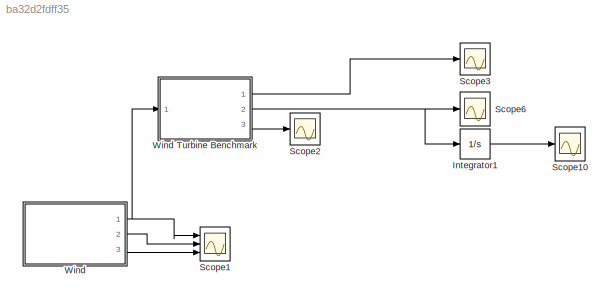
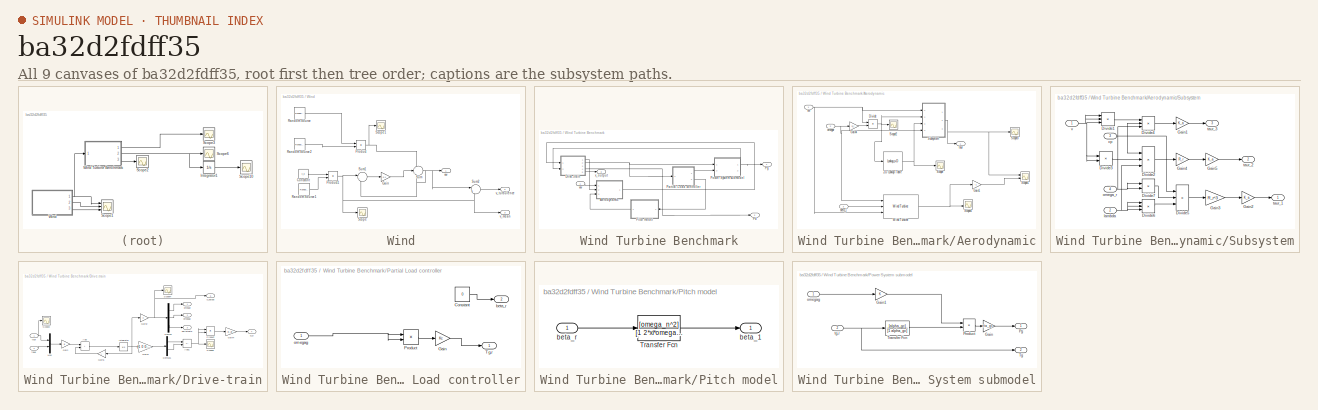
[diagram: thumbnail index - all 9 canvases of the model, root first then tree order]
MODEL mdl_ba32d2fdff35
KIND model
CONFIG AbsTol = auto
CONFIG EnableMultiTasking = off
CONFIG FixedStep = auto
CONFIG MaxStep = auto
CONFIG MinStep = auto
CONFIG RelTol = 1e-1
CONFIG SampleTimeConstraint = Unconstrained
CONFIG SolverName = VariableStepAuto
CONFIG StartTime = 0.0
CONFIG StopTime = 2000
BLOCK [Integrator] Integrator1
  Ports = [1, 1]
BLOCK [Scope] Scope1
  Floating = off
  NumInputPorts = 3
  Ports = [3]
  ScopeSpecificationString = Simulink.scopes.TimeScopeBlockCfg('CurrentConfiguration', extmgr.ConfigurationSet(extmgr.Configuration('Core','General UI',true),extmgr.Configuration('Core','Source UI',true),extmgr.Configuration('Sources','WiredSimulink',true,'DataLoggingVariableName','ScopeData1'),extmgr.Configuration('Visuals','Time Domain',true,'SerializedDisplays',{struct('MinYLimReal','3.48153','MaxYLimReal','15.52953','YLab...<+1604ch>
BLOCK [Scope] Scope10
  Floating = off
  NumInputPorts = 1
  Ports = [1]
  ScopeSpecificationString = Simulink.scopes.TimeScopeBlockCfg('CurrentConfiguration', extmgr.ConfigurationSet(extmgr.Configuration('Core','General UI',true),extmgr.Configuration('Core','Source UI',true),extmgr.Configuration('Sources','WiredSimulink',true,'DataLoggingVariableName','ScopeData1','DataLoggingSaveFormat','Array'),extmgr.Configuration('Visuals','Time Domain',true,'SerializedDisplays',{struct('MinYLimReal','-0.8618...<+1471ch>
BLOCK [Scope] Scope2
  Floating = off
  NumInputPorts = 1
  Ports = [1]
  ScopeSpecificationString = Simulink.scopes.TimeScopeBlockCfg('CurrentConfiguration', extmgr.ConfigurationSet(extmgr.Configuration('Core','General UI',true),extmgr.Configuration('Core','Source UI',true),extmgr.Configuration('Sources','WiredSimulink',true,'DataLoggingVariableName','ScopeData1','DataLoggingSaveFormat','Array'),extmgr.Configuration('Visuals','Time Domain',true,'SerializedDisplays',{struct('MinYLimReal','-0.1455...<+1573ch>
BLOCK [Scope] Scope3
  Floating = off
  NumInputPorts = 1
  Ports = [1]
  ScopeSpecificationString = Simulink.scopes.TimeScopeBlockCfg('CurrentConfiguration', extmgr.ConfigurationSet(extmgr.Configuration('Core','General UI',true),extmgr.Configuration('Core','Source UI',true),extmgr.Configuration('Sources','WiredSimulink',true,'DataLoggingVariableName','pg_real','DataLogging',true,'DataLoggingSaveFormat','Array'),extmgr.Configuration('Visuals','Time Domain',true,'SerializedDisplays',{struct('MinYL...<+1571ch>
BLOCK [Scope] Scope6
  Floating = off
  NumInputPorts = 1
  Ports = [1]
  ScopeSpecificationString = Simulink.scopes.TimeScopeBlockCfg('CurrentConfiguration', extmgr.ConfigurationSet(extmgr.Configuration('Core','General UI',true),extmgr.Configuration('Core','Source UI',true),extmgr.Configuration('Sources','WiredSimulink',true,'DataLoggingVariableName','pd_real','DataLoggingSaveFormat','Array'),extmgr.Configuration('Visuals','Time Domain',true,'SerializedDisplays',{struct('MinYLimReal','-0.00629',...<+1460ch>
BLOCK [SubSystem] Wind
  Ports = [0, 3]
  RequestExecContextInheritance = off
BLOCK [SubSystem] Wind Turbine Benchmark
  Ports = [1, 3]
  RequestExecContextInheritance = off
BLOCK [SubSystem] Wind Turbine Benchmark/Aerodynamic
  Ports = [3, 1]
  RequestExecContextInheritance = off
BLOCK [Lookup_n-D] Wind Turbine Benchmark/Aerodynamic/2-D Lookup Table
  BreakpointsForDimension1 = [0.411941585147336;0.599187760214307;0.878808714980984;1.09851089372623;1.31821307247148;1.64776634058934;1.88316153210211;2.19702178745246;2.35395191512763;2.63642614494295;2.82474229815316;3.07583050243344;3.29553268117869;3.59512656128584;3.8447881280418;4.11941585147336;4.39404357490492;4.5630452508628;4.83344793239541;5.07005027873644;5.2728522898859;5.57705530661009;5.7671821920627;6.0840603...<+211ch>
  BreakpointsForDimension1DataTypeStr = Inherit: Inherit from 'Breakpoint data'
  BreakpointsForDimension2 = [0;1]
  InputPortMap = u0
  InternalRulePriority = Speed
  NumberOfTableDimensions = 1
  Ports = [1, 1]
  RndMeth = Simplest
  Table = cp_list
  TableDataTypeStr = Inherit: Inherit from 'Table data'
BLOCK [Product] Wind Turbine Benchmark/Aerodynamic/Divide
  Inputs = /*
  Ports = [2, 1]
BLOCK [Gain] Wind Turbine Benchmark/Aerodynamic/Gain1
  Gain = -1
BLOCK [Gain] Wind Turbine Benchmark/Aerodynamic/Gain4
  Gain = R_r
BLOCK [Scope] Wind Turbine Benchmark/Aerodynamic/Scope
  Floating = off
  NumInputPorts = 1
  Ports = [1]
  ScopeSpecificationString = Simulink.scopes.TimeScopeBlockCfg('CurrentConfiguration', extmgr.ConfigurationSet(extmgr.Configuration('Core','General UI',true),extmgr.Configuration('Core','Source UI',true),extmgr.Configuration('Sources','WiredSimulink',true,'DataLoggingVariableName','ScopeData2'),extmgr.Configuration('Visuals','Time Domain',true,'SerializedDisplays',{struct('MinYLimReal','0.43937','MaxYLimReal','0.49151','YLabe...<+1444ch>
BLOCK [Scope] Wind Turbine Benchmark/Aerodynamic/Scope1
  Floating = off
  NumInputPorts = 2
  Ports = [2]
  ScopeSpecificationString = Simulink.scopes.TimeScopeBlockCfg('CurrentConfiguration', extmgr.ConfigurationSet(extmgr.Configuration('Core','General UI',true),extmgr.Configuration('Core','Source UI',true),extmgr.Configuration('Sources','WiredSimulink',true,'DataLoggingVariableName','ScopeData1'),extmgr.Configuration('Visuals','Time Domain',true,'SerializedDisplays',{struct('MinYLimReal','-208576.24788','MaxYLimReal','2059285.6...<+1520ch>
BLOCK [Scope] Wind Turbine Benchmark/Aerodynamic/Scope2
  Floating = off
  NumInputPorts = 1
  Ports = [1]
  ScopeSpecificationString = Simulink.scopes.TimeScopeBlockCfg('CurrentConfiguration', extmgr.ConfigurationSet(extmgr.Configuration('Core','General UI',true),extmgr.Configuration('Core','Source UI',true),extmgr.Configuration('Sources','WiredSimulink',true,'DataLoggingVariableName','ScopeData6'),extmgr.Configuration('Visuals','Time Domain',true,'SerializedDisplays',{struct('MinYLimReal','7.0582','MaxYLimReal','9.08619','YLabel...<+1457ch>
BLOCK [Scope] Wind Turbine Benchmark/Aerodynamic/Scope3
  Floating = off
  NumInputPorts = 1
  Ports = [1]
  ScopeSpecificationString = Simulink.scopes.TimeScopeBlockCfg('CurrentConfiguration', extmgr.ConfigurationSet(extmgr.Configuration('Core','General UI',true),extmgr.Configuration('Core','Source UI',true),extmgr.Configuration('Sources','WiredSimulink',true,'DataLoggingVariableName','ScopeData5'),extmgr.Configuration('Visuals','Time Domain',true,'SerializedDisplays',{struct('MinYLimReal','-2176606951.99699','MaxYLimReal','24343...<+1536ch>
BLOCK [Scope] Wind Turbine Benchmark/Aerodynamic/Scope4
  Floating = off
  NumInputPorts = 2
  Ports = [2]
  ScopeSpecificationString = Simulink.scopes.TimeScopeBlockCfg('CurrentConfiguration', extmgr.ConfigurationSet(extmgr.Configuration('Core','General UI',true),extmgr.Configuration('Core','Source UI',true),extmgr.Configuration('Sources','WiredSimulink',true,'DataLoggingVariableName','ScopeData2'),extmgr.Configuration('Visuals','Time Domain',true,'SerializedDisplays',{struct('MinYLimReal','-15.23022','MaxYLimReal','1.69225','YLa...<+1485ch>
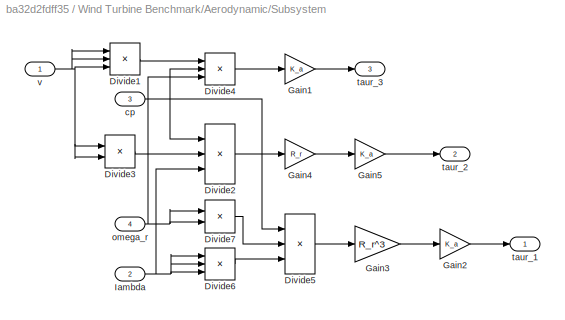
BLOCK [SubSystem] Wind Turbine Benchmark/Aerodynamic/Subsystem
  Ports = [4, 3]
  RequestExecContextInheritance = off
BLOCK [Product] Wind Turbine Benchmark/Aerodynamic/Subsystem/Divide1
  Inputs = ***
  Ports = [3, 1]
BLOCK [Product] Wind Turbine Benchmark/Aerodynamic/Subsystem/Divide2
  Inputs = **/
  Ports = [3, 1]
BLOCK [Product] Wind Turbine Benchmark/Aerodynamic/Subsystem/Divide3
  Inputs = **
  Ports = [2, 1]
BLOCK [Product] Wind Turbine Benchmark/Aerodynamic/Subsystem/Divide4
  Inputs = **/
  Ports = [3, 1]
BLOCK [Product] Wind Turbine Benchmark/Aerodynamic/Subsystem/Divide5
  Inputs = **/
  Ports = [3, 1]
BLOCK [Product] Wind Turbine Benchmark/Aerodynamic/Subsystem/Divide6
  Inputs = ***
  Ports = [3, 1]
BLOCK [Product] Wind Turbine Benchmark/Aerodynamic/Subsystem/Divide7
  Inputs = **
  Ports = [2, 1]
BLOCK [Gain] Wind Turbine Benchmark/Aerodynamic/Subsystem/Gain1
  Gain = K_a
BLOCK [Gain] Wind Turbine Benchmark/Aerodynamic/Subsystem/Gain2
  Gain = K_a
BLOCK [Gain] Wind Turbine Benchmark/Aerodynamic/Subsystem/Gain3
  Gain = R_r^3
BLOCK [Gain] Wind Turbine Benchmark/Aerodynamic/Subsystem/Gain4
  Gain = R_r
BLOCK [Gain] Wind Turbine Benchmark/Aerodynamic/Subsystem/Gain5
  Gain = K_a
BLOCK [Inport] Wind Turbine Benchmark/Aerodynamic/Subsystem/Iambda
  NameLocation = left
  Port = 2
BLOCK [Inport] Wind Turbine Benchmark/Aerodynamic/Subsystem/cp
  Port = 3
BLOCK [Inport] Wind Turbine Benchmark/Aerodynamic/Subsystem/omega_r
  Port = 4
BLOCK [Outport] Wind Turbine Benchmark/Aerodynamic/Subsystem/taur_1
BLOCK [Outport] Wind Turbine Benchmark/Aerodynamic/Subsystem/taur_2
  Port = 2
BLOCK [Outport] Wind Turbine Benchmark/Aerodynamic/Subsystem/taur_3
  Port = 3
BLOCK [Inport] Wind Turbine Benchmark/Aerodynamic/Subsystem/v
BLOCK [Reference] Wind Turbine Benchmark/Aerodynamic/Wind Turbine  REF=spsWindTurbineLib/Wind Turbine
  Ports = [3, 1]
  SourceBlock = spsWindTurbineLib/Wind Turbine
  SourceProductBaseCode = PS
  SourceType = Wind Turbine
BLOCK [Inport] Wind Turbine Benchmark/Aerodynamic/beta_1
  Port = 3
BLOCK [Inport] Wind Turbine Benchmark/Aerodynamic/omegar
  Port = 2
BLOCK [Outport] Wind Turbine Benchmark/Aerodynamic/taur
BLOCK [Inport] Wind Turbine Benchmark/Aerodynamic/vw
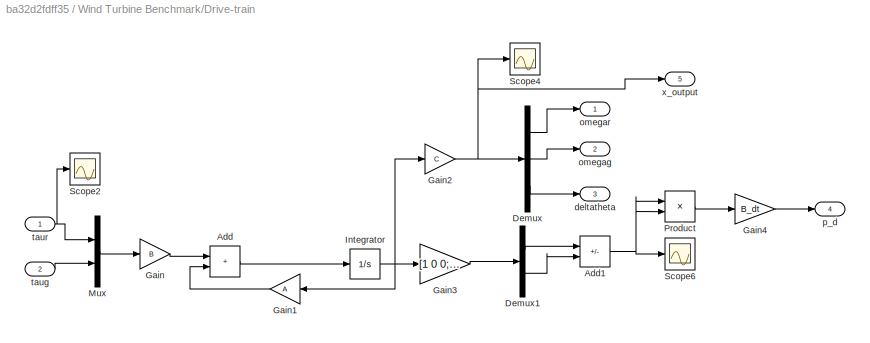
BLOCK [SubSystem] Wind Turbine Benchmark/Drive-train
  Ports = [2, 5]
  RequestExecContextInheritance = off
BLOCK [Sum] Wind Turbine Benchmark/Drive-train/Add
  IconShape = rectangular
  Ports = [2, 1]
BLOCK [Sum] Wind Turbine Benchmark/Drive-train/Add1
  IconShape = rectangular
  Inputs = +-
  Ports = [2, 1]
BLOCK [Demux] Wind Turbine Benchmark/Drive-train/Demux
  Outputs = 3
  Ports = [1, 3]
BLOCK [Demux] Wind Turbine Benchmark/Drive-train/Demux1
  Outputs = 2
  Ports = [1, 2]
BLOCK [Gain] Wind Turbine Benchmark/Drive-train/Gain
  Gain = B
  Multiplication = Matrix(K*u)
BLOCK [Gain] Wind Turbine Benchmark/Drive-train/Gain1
  Gain = A
  Multiplication = Matrix(K*u)
BLOCK [Gain] Wind Turbine Benchmark/Drive-train/Gain2
  Gain = C
  Multiplication = Matrix(K*u)
BLOCK [Gain] Wind Turbine Benchmark/Drive-train/Gain3
  Gain = [1 0 0; 0 1 0]
  Multiplication = Matrix(K*u)
BLOCK [Gain] Wind Turbine Benchmark/Drive-train/Gain4
  Gain = B_dt
BLOCK [Integrator] Wind Turbine Benchmark/Drive-train/Integrator
  InitialCondition = x0
  Ports = [1, 1]
BLOCK [Mux] Wind Turbine Benchmark/Drive-train/Mux
  DisplayOption = bar
  Inputs = 2
  Ports = [2, 1]
BLOCK [Product] Wind Turbine Benchmark/Drive-train/Product
  Ports = [2, 1]
BLOCK [Scope] Wind Turbine Benchmark/Drive-train/Scope2
  Floating = off
  NumInputPorts = 1
  Ports = [1]
  ScopeSpecificationString = Simulink.scopes.TimeScopeBlockCfg('CurrentConfiguration', extmgr.ConfigurationSet(extmgr.Configuration('Core','General UI',true),extmgr.Configuration('Core','Source UI',true),extmgr.Configuration('Sources','WiredSimulink',true,'DataLoggingVariableName','ScopeData1'),extmgr.Configuration('Visuals','Time Domain',true,'SerializedDisplays',{struct('MinYLimReal','-200847.07707','MaxYLimReal','1916141.3...<+1502ch>
BLOCK [Scope] Wind Turbine Benchmark/Drive-train/Scope4
  Floating = off
  NumInputPorts = 1
  Ports = [1]
  ScopeSpecificationString = Simulink.scopes.TimeScopeBlockCfg('CurrentConfiguration', extmgr.ConfigurationSet(extmgr.Configuration('Core','General UI',true),extmgr.Configuration('Core','Source UI',true),extmgr.Configuration('Sources','WiredSimulink',true,'DataLoggingVariableName','ScopeData5'),extmgr.Configuration('Visuals','Time Domain',true,'SerializedDisplays',{struct('MinYLimReal','-4.70663','MaxYLimReal','5.61272','YLab...<+1484ch>
BLOCK [Scope] Wind Turbine Benchmark/Drive-train/Scope6
  Floating = off
  NumInputPorts = 1
  Ports = [1]
  ScopeSpecificationString = Simulink.scopes.TimeScopeBlockCfg('CurrentConfiguration', extmgr.ConfigurationSet(extmgr.Configuration('Core','General UI',true),extmgr.Configuration('Core','Source UI',true),extmgr.Configuration('Sources','WiredSimulink',true,'DataLogging',true,'DataLoggingVariableName','ScopeData4','DataLoggingSaveFormat','Array'),extmgr.Configuration('Visuals','Time Domain',true,'SerializedDisplays',{struct('Mi...<+1486ch>
BLOCK [Outport] Wind Turbine Benchmark/Drive-train/deltatheta
  Port = 3
BLOCK [Outport] Wind Turbine Benchmark/Drive-train/omegag
  Port = 2
BLOCK [Outport] Wind Turbine Benchmark/Drive-train/omegar
BLOCK [Outport] Wind Turbine Benchmark/Drive-train/p_d
  Port = 4
BLOCK [Inport] Wind Turbine Benchmark/Drive-train/taug
  Port = 2
BLOCK [Inport] Wind Turbine Benchmark/Drive-train/taur
BLOCK [Outport] Wind Turbine Benchmark/Drive-train/x_output
  Port = 5
BLOCK [SubSystem] Wind Turbine Benchmark/Partial Load controller
  Ports = [1, 2]
  RequestExecContextInheritance = off
BLOCK [Constant] Wind Turbine Benchmark/Partial Load controller/Constant
  Value = 0
BLOCK [Gain] Wind Turbine Benchmark/Partial Load controller/Gain
  Gain = Kc
BLOCK [Product] Wind Turbine Benchmark/Partial Load controller/Product
  Ports = [2, 1]
BLOCK [Outport] Wind Turbine Benchmark/Partial Load controller/Tg,r
BLOCK [Outport] Wind Turbine Benchmark/Partial Load controller/beta_r
  Port = 2
BLOCK [Inport] Wind Turbine Benchmark/Partial Load controller/omegag
BLOCK [Outport] Wind Turbine Benchmark/Pd
  Port = 2
BLOCK [Outport] Wind Turbine Benchmark/Pg
BLOCK [SubSystem] Wind Turbine Benchmark/Pitch model
  Ports = [1, 1]
  RequestExecContextInheritance = off
BLOCK [TransferFcn] Wind Turbine Benchmark/Pitch model/Transfer Fcn
  Denominator = [1 2*xi*omega_n omega_n^2]
  Numerator = [omega_n^2]
BLOCK [Outport] Wind Turbine Benchmark/Pitch model/beta_1
BLOCK [Inport] Wind Turbine Benchmark/Pitch model/beta_r
BLOCK [SubSystem] Wind Turbine Benchmark/Power System submodel
  Ports = [2, 2]
  RequestExecContextInheritance = off
BLOCK [Gain] Wind Turbine Benchmark/Power System submodel/Gain
  Gain = eta_gc
BLOCK [Gain] Wind Turbine Benchmark/Power System submodel/Gain1
BLOCK [Outport] Wind Turbine Benchmark/Power System submodel/Pg
BLOCK [Product] Wind Turbine Benchmark/Power System submodel/Product
  Ports = [2, 1]
BLOCK [Outport] Wind Turbine Benchmark/Power System submodel/Tg
  Port = 2
BLOCK [TransferFcn] Wind Turbine Benchmark/Power System submodel/Transfer Fcn
  Denominator = [1 alpha_gc]
  Numerator = [alpha_gc]
BLOCK [Inport] Wind Turbine Benchmark/Power System submodel/omegag
BLOCK [Inport] Wind Turbine Benchmark/Power System submodel/tg,r
  Port = 2
BLOCK [Inport] Wind Turbine Benchmark/vw
BLOCK [Outport] Wind Turbine Benchmark/x_output
  Port = 3
BLOCK [Constant] Wind/Constant
  Value = v_0
BLOCK [Gain] Wind/Gain
  Gain = 0.1
BLOCK [Product] Wind/Product
  Ports = [2, 1]
BLOCK [Product] Wind/Product1
  Ports = [2, 1]
BLOCK [Reference] Wind/Random Source  REF=dspsrcs4/Random
Source
  Ports = [0, 1]
  SourceBlock = dspsrcs4/Random\nSource
  SourceProductBaseCode = DS
  SourceType = Random Source
  UserDataPersistent = on
BLOCK [Reference] Wind/Random Source1  REF=dspsrcs4/Random
Source
  Ports = [0, 1]
  SourceBlock = dspsrcs4/Random\nSource
  SourceProductBaseCode = DS
  SourceType = Random Source
  UserDataPersistent = on
BLOCK [Reference] Wind/Random Source2  REF=dspsrcs4/Random
Source
  Ports = [0, 1]
  SourceBlock = dspsrcs4/Random\nSource
  SourceProductBaseCode = DS
  SourceType = Random Source
  UserDataPersistent = on
BLOCK [Scope] Wind/Scope
  Floating = off
  NumInputPorts = 1
  Ports = [1]
  ScopeSpecificationString = Simulink.scopes.TimeScopeBlockCfg('CurrentConfiguration', extmgr.ConfigurationSet(extmgr.Configuration('Core','General UI',true),extmgr.Configuration('Core','Source UI',true),extmgr.Configuration('Sources','WiredSimulink',true,'DataLoggingVariableName','ScopeData1'),extmgr.Configuration('Visuals','Time Domain',true,'SerializedDisplays',{struct('MinYLimReal','9.04277','MaxYLimReal','14.99328','YLab...<+1418ch>
BLOCK [Scope] Wind/Scope1
  Floating = off
  NumInputPorts = 1
  Ports = [1]
  ScopeSpecificationString = Simulink.scopes.TimeScopeBlockCfg('CurrentConfiguration', extmgr.ConfigurationSet(extmgr.Configuration('Core','General UI',true),extmgr.Configuration('Core','Source UI',true),extmgr.Configuration('Sources','WiredSimulink',true,'DataLoggingVariableName','ScopeData2'),extmgr.Configuration('Visuals','Time Domain',true,'SerializedDisplays',{struct('MinYLimReal','-0.30188','MaxYLimReal','0.40324','YLab...<+1467ch>
BLOCK [Sum] Wind/Sum
  Inputs = +|+|+
  Ports = [3, 1]
BLOCK [Sum] Wind/Sum1
  Inputs = |-+
  Ports = [2, 1]
BLOCK [Sum] Wind/Sum2
  Inputs = |+-
  Ports = [2, 1]
BLOCK [Outport] Wind/v_mean
  Port = 3
BLOCK [Outport] Wind/v_turbulence
  Port = 2
BLOCK [Outport] Wind/vw
LINE Integrator1:1 -> Scope10:1
NET Wind Turbine Benchmark/Aerodynamic/2-D Lookup Table:1 -> Wind Turbine Benchmark/Aerodynamic/Scope:1, Wind Turbine Benchmark/Aerodynamic/Subsystem:3
NET Wind Turbine Benchmark/Aerodynamic/Divide:1 -> Wind Turbine Benchmark/Aerodynamic/2-D Lookup Table:1, Wind Turbine Benchmark/Aerodynamic/Scope2:1, Wind Turbine Benchmark/Aerodynamic/Subsystem:2
LINE Wind Turbine Benchmark/Aerodynamic/Gain1:1 -> Wind Turbine Benchmark/Aerodynamic/Scope1:2
LINE Wind Turbine Benchmark/Aerodynamic/Gain4:1 -> Wind Turbine Benchmark/Aerodynamic/Divide:2
LINE Wind Turbine Benchmark/Aerodynamic/Subsystem/Divide1:1 -> Wind Turbine Benchmark/Aerodynamic/Subsystem/Divide4:1
LINE Wind Turbine Benchmark/Aerodynamic/Subsystem/Divide2:1 -> Wind Turbine Benchmark/Aerodynamic/Subsystem/Gain4:1
LINE Wind Turbine Benchmark/Aerodynamic/Subsystem/Divide3:1 -> Wind Turbine Benchmark/Aerodynamic/Subsystem/Divide2:2
LINE Wind Turbine Benchmark/Aerodynamic/Subsystem/Divide4:1 -> Wind Turbine Benchmark/Aerodynamic/Subsystem/Gain1:1
LINE Wind Turbine Benchmark/Aerodynamic/Subsystem/Divide5:1 -> Wind Turbine Benchmark/Aerodynamic/Subsystem/Gain3:1
LINE Wind Turbine Benchmark/Aerodynamic/Subsystem/Divide6:1 -> Wind Turbine Benchmark/Aerodynamic/Subsystem/Divide5:3
LINE Wind Turbine Benchmark/Aerodynamic/Subsystem/Divide7:1 -> Wind Turbine Benchmark/Aerodynamic/Subsystem/Divide5:2
LINE Wind Turbine Benchmark/Aerodynamic/Subsystem/Gain1:1 -> Wind Turbine Benchmark/Aerodynamic/Subsystem/taur_3:1
LINE Wind Turbine Benchmark/Aerodynamic/Subsystem/Gain2:1 -> Wind Turbine Benchmark/Aerodynamic/Subsystem/taur_1:1
LINE Wind Turbine Benchmark/Aerodynamic/Subsystem/Gain3:1 -> Wind Turbine Benchmark/Aerodynamic/Subsystem/Gain2:1
LINE Wind Turbine Benchmark/Aerodynamic/Subsystem/Gain4:1 -> Wind Turbine Benchmark/Aerodynamic/Subsystem/Gain5:1
LINE Wind Turbine Benchmark/Aerodynamic/Subsystem/Gain5:1 -> Wind Turbine Benchmark/Aerodynamic/Subsystem/taur_2:1
NET Wind Turbine Benchmark/Aerodynamic/Subsystem/Iambda:1 -> Wind Turbine Benchmark/Aerodynamic/Subsystem/Divide2:3, Wind Turbine Benchmark/Aerodynamic/Subsystem/Divide6:1, Wind Turbine Benchmark/Aerodynamic/Subsystem/Divide6:2, Wind Turbine Benchmark/Aerodynamic/Subsystem/Divide6:3
NET Wind Turbine Benchmark/Aerodynamic/Subsystem/cp:1 -> Wind Turbine Benchmark/Aerodynamic/Subsystem/Divide2:1, Wind Turbine Benchmark/Aerodynamic/Subsystem/Divide4:2, Wind Turbine Benchmark/Aerodynamic/Subsystem/Divide5:1
NET Wind Turbine Benchmark/Aerodynamic/Subsystem/omega_r:1 -> Wind Turbine Benchmark/Aerodynamic/Subsystem/Divide4:3, Wind Turbine Benchmark/Aerodynamic/Subsystem/Divide7:1, Wind Turbine Benchmark/Aerodynamic/Subsystem/Divide7:2
NET Wind Turbine Benchmark/Aerodynamic/Subsystem/v:1 -> Wind Turbine Benchmark/Aerodynamic/Subsystem/Divide1:1, Wind Turbine Benchmark/Aerodynamic/Subsystem/Divide1:2, Wind Turbine Benchmark/Aerodynamic/Subsystem/Divide1:3, Wind Turbine Benchmark/Aerodynamic/Subsystem/Divide3:1, Wind Turbine Benchmark/Aerodynamic/Subsystem/Divide3:2
NET Wind Turbine Benchmark/Aerodynamic/Subsystem:2 -> Wind Turbine Benchmark/Aerodynamic/Scope1:1, Wind Turbine Benchmark/Aerodynamic/Scope3:1, Wind Turbine Benchmark/Aerodynamic/taur:1
NET Wind Turbine Benchmark/Aerodynamic/Wind Turbine:1 -> Wind Turbine Benchmark/Aerodynamic/Gain1:1, Wind Turbine Benchmark/Aerodynamic/Scope4:2
LINE Wind Turbine Benchmark/Aerodynamic/beta_1:1 -> Wind Turbine Benchmark/Aerodynamic/Wind Turbine:2
NET Wind Turbine Benchmark/Aerodynamic/omegar:1 -> Wind Turbine Benchmark/Aerodynamic/Gain4:1, Wind Turbine Benchmark/Aerodynamic/Subsystem:4, Wind Turbine Benchmark/Aerodynamic/Wind Turbine:1
NET Wind Turbine Benchmark/Aerodynamic/vw:1 -> Wind Turbine Benchmark/Aerodynamic/Divide:1, Wind Turbine Benchmark/Aerodynamic/Subsystem:1, Wind Turbine Benchmark/Aerodynamic/Wind Turbine:3
LINE Wind Turbine Benchmark/Aerodynamic:1 -> Wind Turbine Benchmark/Drive-train:1
NET Wind Turbine Benchmark/Drive-train/Add1:1 -> Wind Turbine Benchmark/Drive-train/Product:1, Wind Turbine Benchmark/Drive-train/Product:2, Wind Turbine Benchmark/Drive-train/Scope6:1
LINE Wind Turbine Benchmark/Drive-train/Add:1 -> Wind Turbine Benchmark/Drive-train/Integrator:1
LINE Wind Turbine Benchmark/Drive-train/Demux1:1 -> Wind Turbine Benchmark/Drive-train/Add1:1
LINE Wind Turbine Benchmark/Drive-train/Demux1:2 -> Wind Turbine Benchmark/Drive-train/Add1:2
LINE Wind Turbine Benchmark/Drive-train/Demux:1 -> Wind Turbine Benchmark/Drive-train/omegar:1
LINE Wind Turbine Benchmark/Drive-train/Demux:2 -> Wind Turbine Benchmark/Drive-train/omegag:1
LINE Wind Turbine Benchmark/Drive-train/Demux:3 -> Wind Turbine Benchmark/Drive-train/deltatheta:1
LINE Wind Turbine Benchmark/Drive-train/Gain1:1 -> Wind Turbine Benchmark/Drive-train/Add:2
NET Wind Turbine Benchmark/Drive-train/Gain2:1 -> Wind Turbine Benchmark/Drive-train/Demux:1, Wind Turbine Benchmark/Drive-train/Scope4:1, Wind Turbine Benchmark/Drive-train/x_output:1
LINE Wind Turbine Benchmark/Drive-train/Gain3:1 -> Wind Turbine Benchmark/Drive-train/Demux1:1
LINE Wind Turbine Benchmark/Drive-train/Gain4:1 -> Wind Turbine Benchmark/Drive-train/p_d:1
LINE Wind Turbine Benchmark/Drive-train/Gain:1 -> Wind Turbine Benchmark/Drive-train/Add:1
NET Wind Turbine Benchmark/Drive-train/Integrator:1 -> Wind Turbine Benchmark/Drive-train/Gain1:1, Wind Turbine Benchmark/Drive-train/Gain2:1, Wind Turbine Benchmark/Drive-train/Gain3:1
LINE Wind Turbine Benchmark/Drive-train/Mux:1 -> Wind Turbine Benchmark/Drive-train/Gain:1
LINE Wind Turbine Benchmark/Drive-train/Product:1 -> Wind Turbine Benchmark/Drive-train/Gain4:1
LINE Wind Turbine Benchmark/Drive-train/taug:1 -> Wind Turbine Benchmark/Drive-train/Mux:2
NET Wind Turbine Benchmark/Drive-train/taur:1 -> Wind Turbine Benchmark/Drive-train/Mux:1, Wind Turbine Benchmark/Drive-train/Scope2:1
LINE Wind Turbine Benchmark/Drive-train:1 -> Wind Turbine Benchmark/Aerodynamic:2
NET Wind Turbine Benchmark/Drive-train:2 -> Wind Turbine Benchmark/Partial Load controller:1, Wind Turbine Benchmark/Power System submodel:1
LINE Wind Turbine Benchmark/Drive-train:4 -> Wind Turbine Benchmark/Pd:1
LINE Wind Turbine Benchmark/Drive-train:5 -> Wind Turbine Benchmark/x_output:1
LINE Wind Turbine Benchmark/Partial Load controller/Constant:1 -> Wind Turbine Benchmark/Partial Load controller/beta_r:1
LINE Wind Turbine Benchmark/Partial Load controller/Gain:1 -> Wind Turbine Benchmark/Partial Load controller/Tg,r:1
LINE Wind Turbine Benchmark/Partial Load controller/Product:1 -> Wind Turbine Benchmark/Partial Load controller/Gain:1
NET Wind Turbine Benchmark/Partial Load controller/omegag:1 -> Wind Turbine Benchmark/Partial Load controller/Product:1, Wind Turbine Benchmark/Partial Load controller/Product:2
LINE Wind Turbine Benchmark/Partial Load controller:1 -> Wind Turbine Benchmark/Power System submodel:2
LINE Wind Turbine Benchmark/Partial Load controller:2 -> Wind Turbine Benchmark/Pitch model:1
LINE Wind Turbine Benchmark/Pitch model/Transfer Fcn:1 -> Wind Turbine Benchmark/Pitch model/beta_1:1
LINE Wind Turbine Benchmark/Pitch model/beta_r:1 -> Wind Turbine Benchmark/Pitch model/Transfer Fcn:1
LINE Wind Turbine Benchmark/Pitch model:1 -> Wind Turbine Benchmark/Aerodynamic:3
LINE Wind Turbine Benchmark/Power System submodel/Gain1:1 -> Wind Turbine Benchmark/Power System submodel/Product:1
LINE Wind Turbine Benchmark/Power System submodel/Gain:1 -> Wind Turbine Benchmark/Power System submodel/Pg:1
LINE Wind Turbine Benchmark/Power System submodel/Product:1 -> Wind Turbine Benchmark/Power System submodel/Gain:1
LINE Wind Turbine Benchmark/Power System submodel/Transfer Fcn:1 -> Wind Turbine Benchmark/Power System submodel/Product:2
LINE Wind Turbine Benchmark/Power System submodel/omegag:1 -> Wind Turbine Benchmark/Power System submodel/Gain1:1
NET Wind Turbine Benchmark/Power System submodel/tg,r:1 -> Wind Turbine Benchmark/Power System submodel/Tg:1, Wind Turbine Benchmark/Power System submodel/Transfer Fcn:1
LINE Wind Turbine Benchmark/Power System submodel:1 -> Wind Turbine Benchmark/Pg:1
LINE Wind Turbine Benchmark/Power System submodel:2 -> Wind Turbine Benchmark/Drive-train:2
LINE Wind Turbine Benchmark/vw:1 -> Wind Turbine Benchmark/Aerodynamic:1
LINE Wind Turbine Benchmark:1 -> Scope3:1
NET Wind Turbine Benchmark:2 -> Integrator1:1, Scope6:1
LINE Wind Turbine Benchmark:3 -> Scope2:1
LINE Wind/Constant:1 -> Wind/Product1:1
LINE Wind/Gain:1 -> Wind/Sum:2
NET Wind/Product1:1 -> Wind/Scope:1, Wind/Sum1:1, Wind/Sum2:2, Wind/v_mean:1
NET Wind/Product:1 -> Wind/Scope1:1, Wind/Sum:1
LINE Wind/Random Source1:1 -> Wind/Product1:2
LINE Wind/Random Source2:1 -> Wind/Product:2
LINE Wind/Random Source:1 -> Wind/Product:1
LINE Wind/Sum1:1 -> Wind/Gain:1
LINE Wind/Sum2:1 -> Wind/v_turbulence:1
NET Wind/Sum:1 -> Wind/Sum1:2, Wind/Sum2:1, Wind/Sum:3, Wind/vw:1
NET Wind:1 -> Scope1:1, Wind Turbine Benchmark:1
LINE Wind:2 -> Scope1:2
LINE Wind:3 -> Scope1:3
note: NET lines group one-source signal fan-out (src -> all destinations, sorted); 1:1 wires keep LINE
